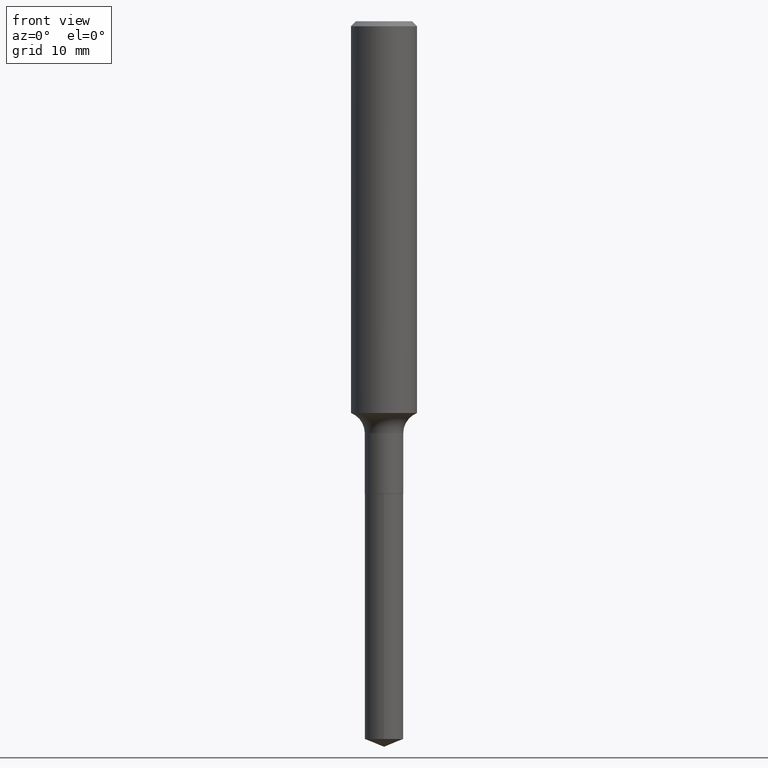
[diagram: clean part render]
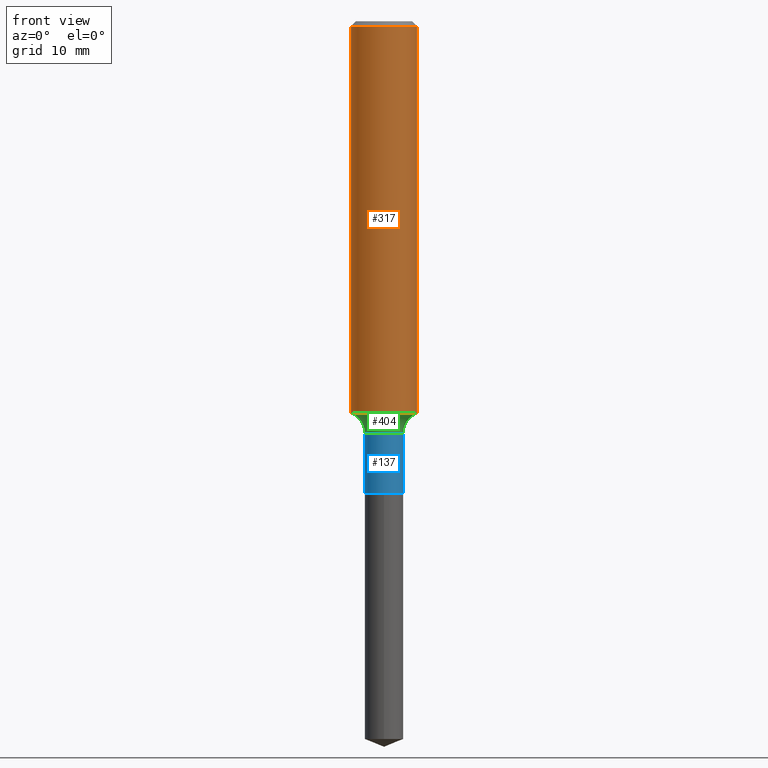
[diagram: same view with three faces highlighted in distinct colors, each labeled with its STEP entity id]
A machine part, front view with three faces highlighted in distinct colors.
Their STEP definitions:

[orange] entity #317 — the highlighted cylindrical surface (edge-blend (fillet) strip) has radius 2.9997 mm, axis along (-0, 0, 1).
#4 = CARTESIAN_POINT ( 'NONE',  ( 0.1181000000000000799, -8.246878922347486570E-16, 5.758764772215004644E-30 ) ) ;
#7 = CARTESIAN_POINT ( 'NONE',  ( 3.430532145968479544E-29, -4.897890719217663237E-15, -1.402811656109412830 ) ) ;
#9 = CARTESIAN_POINT ( 'NONE',  ( 0.000000000000000000, 0.000000000000000000, 0.000000000000000000 ) ) ;
#12 = CIRCLE ( 'NONE', #396, 0.1181000000000001632 ) ;
#19 = VECTOR ( 'NONE', #41, 39.37007874015748143 ) ;
#41 = DIRECTION ( 'NONE',  ( -2.445468806185136877E-29, 3.491481338843145188E-15, 1.000000000000000000 ) ) ;
#45 = AXIS2_PLACEMENT_3D ( 'NONE', #9, #299, #122 ) ;
#76 = DIRECTION ( 'NONE',  ( -2.445468806185136877E-29, 3.491481338843145188E-15, 1.000000000000000000 ) ) ;
#84 = EDGE_CURVE ( 'NONE', #134, #210, #461, .T. ) ;
#99 = DIRECTION ( 'NONE',  ( -2.445468806185136597E-29, 3.491481338843145583E-15, 1.000000000000000000 ) ) ;
#101 = CARTESIAN_POINT ( 'NONE',  ( -0.1181000000000002603, -4.058739748284982673E-15, -1.402811656109412830 ) ) ;
#122 = DIRECTION ( 'NONE',  ( 1.000000000000000000, -6.982962677686266711E-15, 4.876176775795936353E-29 ) ) ;
#134 = VERTEX_POINT ( 'NONE', #180 ) ;
#175 = VERTEX_POINT ( 'NONE', #101 ) ;
#180 = CARTESIAN_POINT ( 'NONE',  ( -0.1180999999999999966, -1.640720184634955534E-15, -0.01771500000000011954 ) ) ;
#188 = EDGE_CURVE ( 'NONE', #175, #266, #12, .T. ) ;
#201 = EDGE_CURVE ( 'NONE', #175, #134, #303, .T. ) ;
#210 = VERTEX_POINT ( 'NONE', #456 ) ;
#213 = EDGE_CURVE ( 'NONE', #266, #210, #379, .T. ) ;
#226 = DIRECTION ( 'NONE',  ( -2.445468806185136597E-29, 3.491481338843145583E-15, 1.000000000000000000 ) ) ;
#229 = ORIENTED_EDGE ( 'NONE', *, *, #213, .T. ) ;
#261 = VECTOR ( 'NONE', #76, 39.37007874015748143 ) ;
#266 = VERTEX_POINT ( 'NONE', #380 ) ;
#299 = DIRECTION ( 'NONE',  ( -2.445468806185136597E-29, 3.491481338843145583E-15, 1.000000000000000000 ) ) ;
#303 = LINE ( 'NONE', #308, #261 ) ;
#308 = CARTESIAN_POINT ( 'NONE',  ( -0.1181000000000000799, 8.391509709326788873E-16, -5.809262341591047988E-30 ) ) ;
#317 = ADVANCED_FACE ( 'NONE', ( #346 ), #412, .T. ) ;
#325 = CARTESIAN_POINT ( 'NONE',  ( 4.332147990156998495E-31, -6.185159191760674092E-17, -0.01771500000000011954 ) ) ;
#346 = FACE_OUTER_BOUND ( 'NONE', #385, .T. ) ;
#354 = ORIENTED_EDGE ( 'NONE', *, *, #201, .F. ) ;
#379 = LINE ( 'NONE', #4, #19 ) ;
#380 = CARTESIAN_POINT ( 'NONE',  ( 0.1181000000000002603, -5.722578611452413077E-15, -1.402811656109412830 ) ) ;
#385 = EDGE_LOOP ( 'NONE', ( #354, #423, #229, #390 ) ) ;
#390 = ORIENTED_EDGE ( 'NONE', *, *, #84, .F. ) ;
#396 = AXIS2_PLACEMENT_3D ( 'NONE', #7, #226, #422 ) ;
#412 = CYLINDRICAL_SURFACE ( 'NONE', #45, 0.1181000000000000799 ) ;
#422 = DIRECTION ( 'NONE',  ( 1.000000000000000000, -6.982962677686270655E-15, 0.000000000000000000 ) ) ;
#423 = ORIENTED_EDGE ( 'NONE', *, *, #188, .T. ) ;
#445 = AXIS2_PLACEMENT_3D ( 'NONE', #325, #99, #450 ) ;
#450 = DIRECTION ( 'NONE',  ( 1.000000000000000000, -6.982962677686266711E-15, 0.000000000000000000 ) ) ;
#456 = CARTESIAN_POINT ( 'NONE',  ( 0.1180999999999999966, -8.865394841523548556E-16, -0.01771500000000011954 ) ) ;
#461 = CIRCLE ( 'NONE', #445, 0.1180999999999999966 ) ;

[blue] entity #137 — the highlighted cylindrical surface (edge-blend (fillet) strip) has radius 1.7501 mm, axis along (-0, 0, 1).
#1 = AXIS2_PLACEMENT_3D ( 'NONE', #414, #120, #237 ) ;
#5 = ORIENTED_EDGE ( 'NONE', *, *, #352, .T. ) ;
#10 = VERTEX_POINT ( 'NONE', #204 ) ;
#18 = ORIENTED_EDGE ( 'NONE', *, *, #165, .T. ) ;
#25 = ORIENTED_EDGE ( 'NONE', *, *, #378, .F. ) ;
#31 = CYLINDRICAL_SURFACE ( 'NONE', #307, 0.06890000000000000291 ) ;
#33 = DIRECTION ( 'NONE',  ( 1.000000000000000000, -6.982962677686265922E-15, 4.876176775795934672E-29 ) ) ;
#40 = CARTESIAN_POINT ( 'NONE',  ( 0.06889999999999997515, -5.632108547687876483E-15, -1.475300000000000056 ) ) ;
#46 = CARTESIAN_POINT ( 'NONE',  ( -0.06890000000000001679, -5.039720477320238409E-15, -1.692000000000000171 ) ) ;
#47 = VERTEX_POINT ( 'NONE', #40 ) ;
#51 = CIRCLE ( 'NONE', #1, 0.06889999999999997515 ) ;
#110 = CARTESIAN_POINT ( 'NONE',  ( 0.000000000000000000, 0.000000000000000000, 0.000000000000000000 ) ) ;
#112 = DIRECTION ( 'NONE',  ( -2.445468806185136877E-29, 3.491481338843145188E-15, 1.000000000000000000 ) ) ;
#120 = DIRECTION ( 'NONE',  ( -2.445468806185136597E-29, 3.491481338843145583E-15, 1.000000000000000000 ) ) ;
#137 = ADVANCED_FACE ( 'NONE', ( #410 ), #31, .T. ) ;
#165 = EDGE_CURVE ( 'NONE', #276, #10, #199, .T. ) ;
#168 = DIRECTION ( 'NONE',  ( -2.445468806185136877E-29, 3.491481338843145188E-15, 1.000000000000000000 ) ) ;
#182 = CARTESIAN_POINT ( 'NONE',  ( 4.137733220065251539E-29, -5.907586425322602368E-15, -1.692000000000000171 ) ) ;
#199 = CIRCLE ( 'NONE', #366, 0.06890000000000000291 ) ;
#200 = VERTEX_POINT ( 'NONE', #268 ) ;
#204 = CARTESIAN_POINT ( 'NONE',  ( 0.06890000000000000291, -6.388712553815186107E-15, -1.692000000000000171 ) ) ;
#237 = DIRECTION ( 'NONE',  ( 1.000000000000000000, -6.982962677686268288E-15, 0.000000000000000000 ) ) ;
#247 = EDGE_CURVE ( 'NONE', #200, #47, #51, .T. ) ;
#264 = EDGE_LOOP ( 'NONE', ( #25, #18, #5, #306 ) ) ;
#268 = CARTESIAN_POINT ( 'NONE',  ( -0.06889999999999997515, -5.039720477320238409E-15, -1.475300000000000056 ) ) ;
#276 = VERTEX_POINT ( 'NONE', #46 ) ;
#306 = ORIENTED_EDGE ( 'NONE', *, *, #247, .F. ) ;
#307 = AXIS2_PLACEMENT_3D ( 'NONE', #110, #409, #33 ) ;
#327 = VECTOR ( 'NONE', #112, 39.37007874015748143 ) ;
#352 = EDGE_CURVE ( 'NONE', #10, #47, #491, .T. ) ;
#366 = AXIS2_PLACEMENT_3D ( 'NONE', #182, #377, #444 ) ;
#377 = DIRECTION ( 'NONE',  ( -2.445468806185136597E-29, 3.491481338843145583E-15, 1.000000000000000000 ) ) ;
#378 = EDGE_CURVE ( 'NONE', #276, #200, #392, .T. ) ;
#392 = LINE ( 'NONE', #427, #487 ) ;
#409 = DIRECTION ( 'NONE',  ( -2.445468806185136597E-29, 3.491481338843145583E-15, 1.000000000000000000 ) ) ;
#410 = FACE_OUTER_BOUND ( 'NONE', #264, .T. ) ;
#414 = CARTESIAN_POINT ( 'NONE',  ( 3.607800129764931825E-29, -5.150982419195292745E-15, -1.475300000000000056 ) ) ;
#427 = CARTESIAN_POINT ( 'NONE',  ( -0.06890000000000000291, 4.895639449387090487E-16, -3.389146277185630017E-30 ) ) ;
#444 = DIRECTION ( 'NONE',  ( 1.000000000000000000, -6.982962677686265922E-15, 0.000000000000000000 ) ) ;
#451 = CARTESIAN_POINT ( 'NONE',  ( 0.06890000000000000291, -4.811261284925837385E-16, 3.359685798523399268E-30 ) ) ;
#487 = VECTOR ( 'NONE', #168, 39.37007874015748143 ) ;
#491 = LINE ( 'NONE', #451, #327 ) ;

[green] entity #404 — the highlighted toroidal blend (fillet) surface has major radius 3.7313 mm and minor (blend) radius 1.9812 mm.
#1 = AXIS2_PLACEMENT_3D ( 'NONE', #414, #120, #237 ) ;
#7 = CARTESIAN_POINT ( 'NONE',  ( 3.430532145968479544E-29, -4.897890719217663237E-15, -1.402811656109412830 ) ) ;
#12 = CIRCLE ( 'NONE', #396, 0.1181000000000001632 ) ;
#24 = CARTESIAN_POINT ( 'NONE',  ( -0.1468999999999999750, -4.107195140363705355E-15, -1.475300000000000056 ) ) ;
#39 = CIRCLE ( 'NONE', #162, 0.07800000000000006928 ) ;
#40 = CARTESIAN_POINT ( 'NONE',  ( 0.06889999999999997515, -5.632108547687876483E-15, -1.475300000000000056 ) ) ;
#47 = VERTEX_POINT ( 'NONE', #40 ) ;
#51 = CIRCLE ( 'NONE', #1, 0.06889999999999997515 ) ;
#65 = AXIS2_PLACEMENT_3D ( 'NONE', #160, #382, #339 ) ;
#90 = FACE_OUTER_BOUND ( 'NONE', #272, .T. ) ;
#92 = DIRECTION ( 'NONE',  ( -2.445468806185136597E-29, 3.491481338843145583E-15, 1.000000000000000000 ) ) ;
#101 = CARTESIAN_POINT ( 'NONE',  ( -0.1181000000000002603, -4.058739748284982673E-15, -1.402811656109412830 ) ) ;
#117 = ORIENTED_EDGE ( 'NONE', *, *, #188, .F. ) ;
#120 = DIRECTION ( 'NONE',  ( -2.445468806185136597E-29, 3.491481338843145583E-15, 1.000000000000000000 ) ) ;
#121 = CIRCLE ( 'NONE', #65, 0.07800000000000006928 ) ;
#160 = CARTESIAN_POINT ( 'NONE',  ( 0.1468999999999999750, -6.176779636547406107E-15, -1.475300000000000056 ) ) ;
#162 = AXIS2_PLACEMENT_3D ( 'NONE', #24, #424, #469 ) ;
#175 = VERTEX_POINT ( 'NONE', #101 ) ;
#188 = EDGE_CURVE ( 'NONE', #175, #266, #12, .T. ) ;
#200 = VERTEX_POINT ( 'NONE', #268 ) ;
#226 = DIRECTION ( 'NONE',  ( -2.445468806185136597E-29, 3.491481338843145583E-15, 1.000000000000000000 ) ) ;
#234 = AXIS2_PLACEMENT_3D ( 'NONE', #316, #92, #358 ) ;
#237 = DIRECTION ( 'NONE',  ( 1.000000000000000000, -6.982962677686268288E-15, 0.000000000000000000 ) ) ;
#247 = EDGE_CURVE ( 'NONE', #200, #47, #51, .T. ) ;
#266 = VERTEX_POINT ( 'NONE', #380 ) ;
#268 = CARTESIAN_POINT ( 'NONE',  ( -0.06889999999999997515, -5.039720477320238409E-15, -1.475300000000000056 ) ) ;
#272 = EDGE_LOOP ( 'NONE', ( #117, #433, #283, #417 ) ) ;
#273 = EDGE_CURVE ( 'NONE', #266, #47, #121, .T. ) ;
#283 = ORIENTED_EDGE ( 'NONE', *, *, #247, .T. ) ;
#316 = CARTESIAN_POINT ( 'NONE',  ( 3.607800129764931825E-29, -5.150982419195292745E-15, -1.475300000000000056 ) ) ;
#339 = DIRECTION ( 'NONE',  ( 1.000000000000000000, -6.982962677686264344E-15, 0.000000000000000000 ) ) ;
#349 = TOROIDAL_SURFACE ( 'NONE', #234, 0.1468999999999999750, 0.07800000000000006928 ) ;
#358 = DIRECTION ( 'NONE',  ( 1.000000000000000000, -6.982962677686268288E-15, 4.883557194083113462E-29 ) ) ;
#380 = CARTESIAN_POINT ( 'NONE',  ( 0.1181000000000002603, -5.722578611452413077E-15, -1.402811656109412830 ) ) ;
#382 = DIRECTION ( 'NONE',  ( -6.982962677686266711E-15, -1.000000000000000000, 3.491481338843145583E-15 ) ) ;
#396 = AXIS2_PLACEMENT_3D ( 'NONE', #7, #226, #422 ) ;
#404 = ADVANCED_FACE ( 'NONE', ( #90 ), #349, .F. ) ;
#414 = CARTESIAN_POINT ( 'NONE',  ( 3.607800129764931825E-29, -5.150982419195292745E-15, -1.475300000000000056 ) ) ;
#417 = ORIENTED_EDGE ( 'NONE', *, *, #273, .F. ) ;
#418 = EDGE_CURVE ( 'NONE', #175, #200, #39, .T. ) ;
#422 = DIRECTION ( 'NONE',  ( 1.000000000000000000, -6.982962677686270655E-15, 0.000000000000000000 ) ) ;
#424 = DIRECTION ( 'NONE',  ( 7.105427357601001859E-15, 1.000000000000000000, -3.491481338843145583E-15 ) ) ;
#433 = ORIENTED_EDGE ( 'NONE', *, *, #418, .T. ) ;
#469 = DIRECTION ( 'NONE',  ( -1.000000000000000000, 7.105427357601005014E-15, 0.000000000000000000 ) ) ;